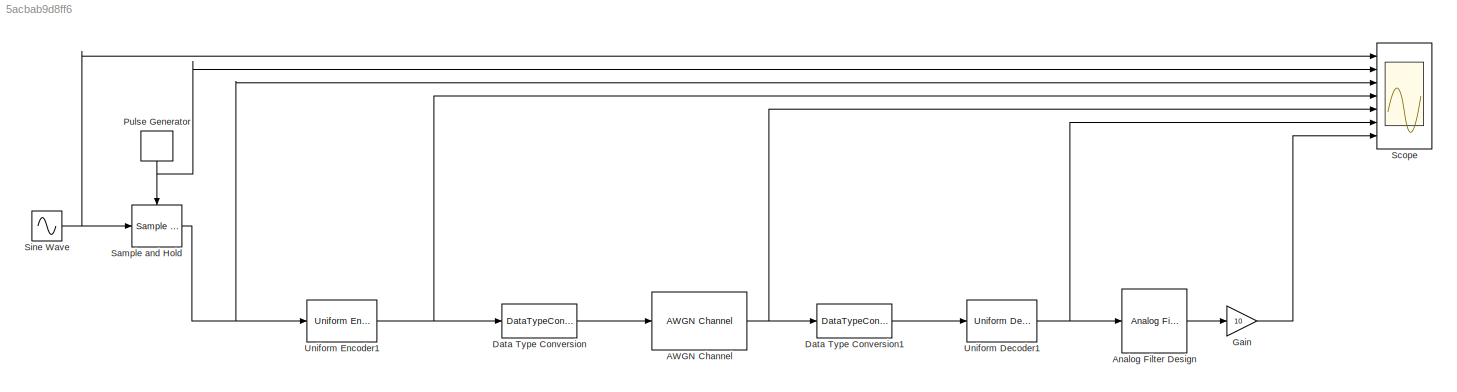
MODEL slx_5acbab9d8ff6
KIND model
CONFIG AbsTol = auto
CONFIG EnableMultiTasking = off
CONFIG FixedStep = auto
CONFIG MaxStep = 1e-4
CONFIG MinStep = auto
CONFIG RelTol = 1e-3
CONFIG SampleTimeConstraint = Unconstrained
CONFIG Solver = VariableStepAuto
CONFIG SolverName = VariableStepAuto
CONFIG StartTime = 0.0
CONFIG StopTime = 10.0
BLOCK [Reference] AWGN Channel  REF=commchan3/AWGN
Channel
  Ports = [1, 1]
  SourceBlock = commchan3/AWGN\nChannel
  SourceProductBaseCode = CM
  SourceProductName = Communications System Toolbox
  SourceType = AWGN Channel
  UserDataPersistent = on
BLOCK [Reference] Analog Filter Design  REF=dsparch4/Analog
Filter Design
  Ports = [1, 1]
  SourceBlock = dsparch4/Analog\nFilter Design
  SourceProductBaseCode = DS
  SourceProductName = DSP System Toolbox
  SourceType = Analog Filter Design
BLOCK [DataTypeConversion] Data Type Conversion
  OutDataTypeStr = double
  RndMeth = Floor
  SaturateOnIntegerOverflow = off
BLOCK [DataTypeConversion] Data Type Conversion1
  OutDataTypeStr = uint8
  RndMeth = Floor
  SaturateOnIntegerOverflow = off
BLOCK [Gain] Gain
  Gain = 10
  OutDataTypeStr = Inherit: Inherit via internal rule
  ParamDataTypeStr = Inherit: Inherit via internal rule
  SaturateOnIntegerOverflow = off
BLOCK [DiscretePulseGenerator] Pulse Generator
  Period = 0.1
  Ports = [0, 1]
  PulseType = Time based
  PulseWidth = 5
BLOCK [Reference] Sample and Hold  REF=dspsigops/Sample
and Hold
  Ports = [1, 1, 0, 1]
  SourceBlock = dspsigops/Sample\nand Hold
  SourceProductBaseCode = DS
  SourceProductName = DSP System Toolbox
  SourceType = Sample and Hold
BLOCK [Scope] Scope
  Floating = off
  NumInputPorts = 7
  Ports = [7]
  ScopeSpecificationString = Simulink.scopes.TimeScopeBlockCfg('CurrentConfiguration', extmgr.ConfigurationSet(extmgr.Configuration('Core','General UI',true),extmgr.Configuration('Core','Source UI',true),extmgr.Configuration('Sources','WiredSimulink',true),extmgr.Configuration('Visuals','Time Domain',true,'SerializedDisplays',{struct('MinYLimReal','-1.25','MaxYLimReal','1.25','YLabelReal','','MinYLimMag','0.00000','MaxYLimMag...<+6200ch>
BLOCK [Sin] Sine Wave
  Frequency = 2*pi
  Ports = [0, 1]
  SampleTime = 0
BLOCK [Reference] Uniform Decoder1  REF=dspquant2/Uniform
Decoder
  Ports = [1, 1]
  SourceBlock = dspquant2/Uniform\nDecoder
  SourceProductBaseCode = DS
  SourceProductName = DSP System Toolbox
  SourceType = Uniform Decoder
BLOCK [Reference] Uniform Encoder1  REF=dspquant2/Uniform
Encoder
  Ports = [1, 1]
  SourceBlock = dspquant2/Uniform\nEncoder
  SourceProductBaseCode = DS
  SourceProductName = DSP System Toolbox
  SourceType = Uniform Encoder
NET AWGN Channel:1 -> Data Type Conversion1:1, Scope:5
LINE Analog Filter Design:1 -> Gain:1
LINE Data Type Conversion1:1 -> Uniform Decoder1:1
LINE Data Type Conversion:1 -> AWGN Channel:1
LINE Gain:1 -> Scope:7
NET Pulse Generator:1 -> Sample and Hold:trigger, Scope:2
NET Sample and Hold:1 -> Scope:3, Uniform Encoder1:1
NET Sine Wave:1 -> Sample and Hold:1, Scope:1
NET Uniform Decoder1:1 -> Analog Filter Design:1, Scope:6
NET Uniform Encoder1:1 -> Data Type Conversion:1, Scope:4
note: NET lines group one-source signal fan-out (src -> all destinations, sorted); 1:1 wires keep LINE
